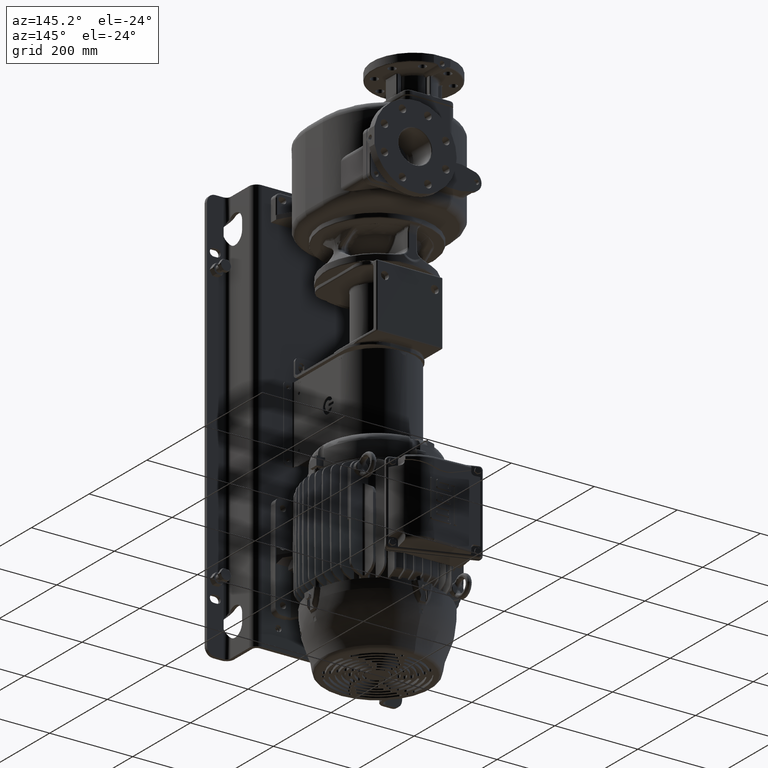
[diagram: clean part render]
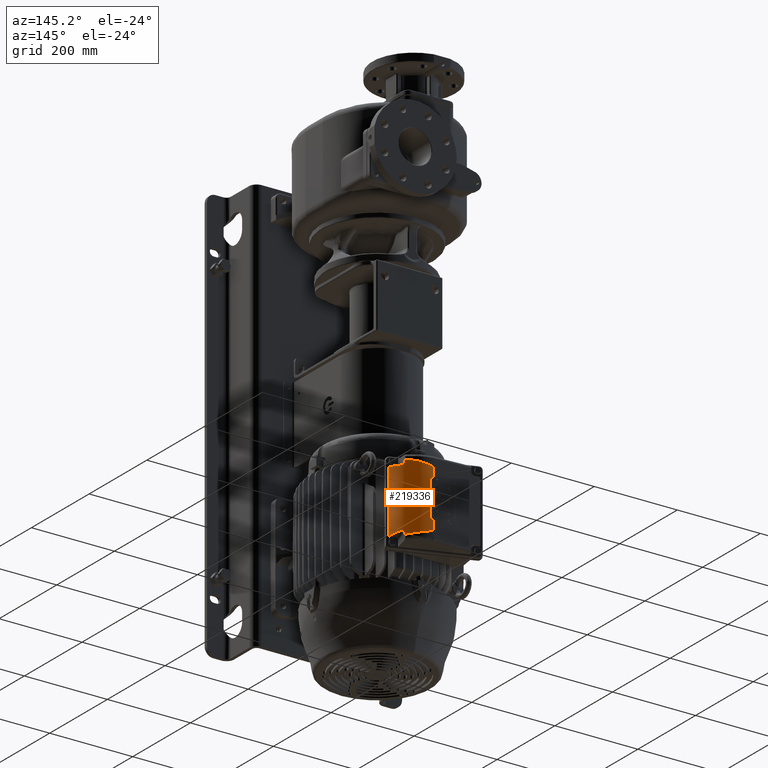
[diagram: same view with one face highlighted and labeled with its STEP entity id]
A machine part, auxiliary view. The second image highlights one B-rep face of the part: STEP entity #219336.
In plain terms, the highlighted cylindrical surface (edge-blend (fillet) strip) has radius 65 mm, axis along (0, 0, -1).
Its self-contained STEP definition (entity closure, byte-faithful):
#89718=CARTESIAN_POINT('',(4.771294631195E1,4.182092098260E2,
-8.160003177154E2));
#89719=CARTESIAN_POINT('',(4.646697699610E1,4.182925476321E2,
-8.159667786180E2));
#89720=CARTESIAN_POINT('',(4.521941759390E1,4.183399555284E2,-8.1595E2));
#89721=CARTESIAN_POINT('',(4.397026638450E1,4.183513946304E2,-8.1595E2));
#89727=DIRECTION('',(0.E0,0.E0,-1.E0));
#89728=VECTOR('',#89727,8.182486131111E1);
#89729=CARTESIAN_POINT('',(4.446933435476E1,4.183449080974E2,
-7.260366757881E2));
#89730=LINE('',#89729,#89728);
#89731=DIRECTION('',(0.E0,0.E0,1.E0));
#89732=VECTOR('',#89731,8.653436815393E1);
#89733=CARTESIAN_POINT('',(5.167995140178E1,4.178213881604E2,
-8.123577223964E2));
#89734=LINE('',#89733,#89732);
#89735=DIRECTION('',(2.019906635933E-14,0.E0,1.E0));
#89736=VECTOR('',#89735,2.321682583042E1);
#89737=CARTESIAN_POINT('',(4.397026638450E1,4.183513946304E2,
-8.391668258304E2));
#89738=LINE('',#89737,#89736);
#89739=DIRECTION('',(0.E0,2.082971834818E-14,-1.E0));
#89740=VECTOR('',#89739,2.728957632102E0);
#89741=CARTESIAN_POINT('',(9.540577810269E1,3.923131205767E2,
-8.481679453349E2));
#89742=LINE('',#89741,#89740);
#89743=CARTESIAN_POINT('',(1.083515095551E2,3.551034637032E2,-8.45675E2));
#89744=CARTESIAN_POINT('',(1.082871176806E2,3.574951924072E2,
-8.452825600711E2));
#89745=CARTESIAN_POINT('',(1.078965939868E2,3.622169654542E2,
-8.445236780234E2));
#89746=CARTESIAN_POINT('',(1.065633760421E2,3.691234773207E2,
-8.434595950746E2));
#89747=CARTESIAN_POINT('',(1.044924227249E2,3.758561267866E2,
-8.424687890729E2));
#89748=CARTESIAN_POINT('',(1.026092383523E2,3.802261238736E2,
-8.418581683417E2));
#89749=CARTESIAN_POINT('',(1.015344383104E2,3.823797292666E2,
-8.415660890957E2));
#89751=DIRECTION('',(0.E0,0.E0,-1.E0));
#89752=VECTOR('',#89751,1.5045E2);
#89753=CARTESIAN_POINT('',(1.083515095551E2,3.551034637032E2,-6.95225E2));
#89754=LINE('',#89753,#89752);
#89755=CARTESIAN_POINT('',(1.015344383104E2,3.823797292666E2,
-6.993339109043E2));
#89756=CARTESIAN_POINT('',(1.026092383523E2,3.802261238736E2,
-6.990418316583E2));
#89757=CARTESIAN_POINT('',(1.044924227249E2,3.758561267866E2,
-6.984312109271E2));
#89758=CARTESIAN_POINT('',(1.065633760421E2,3.691234773207E2,
-6.974404049254E2));
#89759=CARTESIAN_POINT('',(1.078965939868E2,3.622169654542E2,
-6.963763219766E2));
#89760=CARTESIAN_POINT('',(1.082871176806E2,3.574951924072E2,
-6.956174399289E2));
#89761=CARTESIAN_POINT('',(1.083515095551E2,3.551034637032E2,-6.95225E2));
#89763=DIRECTION('',(0.E0,0.E0,-1.E0));
#89764=VECTOR('',#89763,2.728957632102E0);
#89765=CARTESIAN_POINT('',(9.540577810269E1,3.923131205767E2,
-6.900030970330E2));
#89766=LINE('',#89765,#89764);
#89767=DIRECTION('',(-1.460114943669E-14,0.E0,1.E0));
#89768=VECTOR('',#89767,1.070596548203E2);
#89769=CARTESIAN_POINT('',(4.397026638450E1,4.183513946304E2,
-8.087928289899E2));
#89770=LINE('',#89769,#89768);
#89783=CARTESIAN_POINT('',(4.397026638450E1,4.183513946304E2,
-8.087928289899E2));
#89784=CARTESIAN_POINT('',(4.398621734625E1,4.183512485595E2,
-8.087831982505E2));
#89785=CARTESIAN_POINT('',(4.401747901137E1,4.183509505303E2,
-8.087631308728E2));
#89786=CARTESIAN_POINT('',(4.406234584593E1,4.183504911136E2,
-8.087307210676E2));
#89787=CARTESIAN_POINT('',(4.410518360313E1,4.183500235670E2,
-8.086960410248E2));
#89788=CARTESIAN_POINT('',(4.414595745549E1,4.183495523087E2,
-8.086591389081E2));
#89789=CARTESIAN_POINT('',(4.418463536582E1,4.183490816249E2,
-8.086200519821E2));
#89790=CARTESIAN_POINT('',(4.422117736796E1,4.183486157766E2,
-8.085788134857E2));
#89791=CARTESIAN_POINT('',(4.425553653304E1,4.183481590028E2,
-8.085354532145E2));
#89792=CARTESIAN_POINT('',(4.428765825810E1,4.183477155329E2,
-8.084899988375E2));
#89793=CARTESIAN_POINT('',(4.431748060679E1,4.183472895835E2,
-8.084424762516E2));
#89794=CARTESIAN_POINT('',(4.434493359472E1,4.183468853658E2,
-8.083929111861E2));
#89795=CARTESIAN_POINT('',(4.436993802866E1,4.183465070969E2,
-8.083413328881E2));
#89796=CARTESIAN_POINT('',(4.439240711880E1,4.183461589641E2,
-8.082877731798E2));
#89797=CARTESIAN_POINT('',(4.441224582342E1,4.183458451173E2,
-8.082322698302E2));
#89798=CARTESIAN_POINT('',(4.442935153014E1,4.183455696339E2,
-8.081748685790E2));
#89799=CARTESIAN_POINT('',(4.444361503414E1,4.183453364721E2,
-8.081156248535E2));
#89800=CARTESIAN_POINT('',(4.445492181873E1,4.183451494113E2,
-8.080546054170E2));
#89801=CARTESIAN_POINT('',(4.446315344306E1,4.183450119835E2,
-8.079918887967E2));
#89802=CARTESIAN_POINT('',(4.446818890617E1,4.183449273986E2,
-8.079275720689E2));
#89803=CARTESIAN_POINT('',(4.446933435476E1,4.183449080974E2,
-8.078836980384E2));
#89804=CARTESIAN_POINT('',(4.446933435476E1,4.183449080974E2,
-8.078615370992E2));
#89810=CARTESIAN_POINT('',(4.397026638450E1,4.183513946304E2,
-8.087928289899E2));
#89966=CARTESIAN_POINT('',(4.446933435476E1,4.183449080974E2,
-7.260366757881E2));
#89967=CARTESIAN_POINT('',(4.446933435476E1,4.183449080974E2,
-7.260145105489E2));
#89968=CARTESIAN_POINT('',(4.447048030892E1,4.183448888172E2,
-7.259706249630E2));
#89969=CARTESIAN_POINT('',(4.447551856265E1,4.183448037860E2,
-7.259062858888E2));
#89970=CARTESIAN_POINT('',(4.448375663144E1,4.183446639042E2,
-7.258435309807E2));
#89971=CARTESIAN_POINT('',(4.449507614162E1,4.183444699893E2,
-7.257824510182E2));
#89972=CARTESIAN_POINT('',(4.450936213876E1,4.183442224320E2,
-7.257231179971E2));
#89973=CARTESIAN_POINT('',(4.452650445962E1,4.183439212227E2,
-7.256655929238E2));
#89974=CARTESIAN_POINT('',(4.454639920102E1,4.183435659695E2,
-7.256099257872E2));
#89975=CARTESIAN_POINT('',(4.456894976802E1,4.183431559149E2,
-7.255561581159E2));
#89976=CARTESIAN_POINT('',(4.459406702883E1,4.183426899627E2,
-7.255043260103E2));
#89977=CARTESIAN_POINT('',(4.462166975552E1,4.183421666914E2,
-7.254544615860E2));
#89978=CARTESIAN_POINT('',(4.465168354709E1,4.183415843927E2,
-7.254065963601E2));
#89979=CARTESIAN_POINT('',(4.468404208633E1,4.183409410587E2,
-7.253607600787E2));
#89980=CARTESIAN_POINT('',(4.471868622929E1,4.183402344072E2,
-7.253169834575E2));
#89981=CARTESIAN_POINT('',(4.475556356094E1,4.183394618934E2,
-7.252752993392E2));
#89982=CARTESIAN_POINT('',(4.479462791612E1,4.183386207213E2,
-7.252357437433E2));
#89983=CARTESIAN_POINT('',(4.483583869575E1,4.183377078561E2,
-7.251983570008E2));
#89984=CARTESIAN_POINT('',(4.487915800659E1,4.183367200874E2,
-7.251631862845E2));
#89985=CARTESIAN_POINT('',(4.492455003789E1,4.183356540482E2,
-7.251302853645E2));
#89986=CARTESIAN_POINT('',(4.497198035663E1,4.183345062362E2,
-7.250997146489E2));
#89987=CARTESIAN_POINT('',(4.502141467529E1,4.183332730511E2,
-7.250715415839E2));
#89988=CARTESIAN_POINT('',(4.507281601728E1,4.183319508784E2,
-7.250458415499E2));
#89989=CARTESIAN_POINT('',(4.512614440136E1,4.183305361196E2,
-7.250226970164E2));
#89990=CARTESIAN_POINT('',(4.518135405371E1,4.183290252932E2,
-7.250021978336E2));
#89991=CARTESIAN_POINT('',(4.523839245672E1,4.183274150994E2,
-7.249844403102E2));
#89992=CARTESIAN_POINT('',(4.529719798670E1,4.183257025327E2,
-7.249695267082E2));
#89993=CARTESIAN_POINT('',(4.535769785110E1,4.183238850030E2,
-7.249575641029E2));
#89994=CARTESIAN_POINT('',(4.541980792775E1,4.183219604083E2,
-7.249486628794E2));
#89995=CARTESIAN_POINT('',(4.548342697240E1,4.183199274017E2,
-7.249429354134E2));
#89996=CARTESIAN_POINT('',(4.552677260950E1,4.183184992631E2,
-7.249413076148E2));
#89997=CARTESIAN_POINT('',(4.554865364849E1,4.183177671518E2,
-7.249410596728E2));
#90017=CARTESIAN_POINT('',(4.554865364849E1,4.183177671518E2,
-7.249410596728E2));
#90018=CARTESIAN_POINT('',(4.721607607772E1,4.182619773491E2,
-7.249221655006E2));
#90019=CARTESIAN_POINT('',(4.887801531294E1,4.181421976353E2,
-7.248734101805E2));
#90020=CARTESIAN_POINT('',(5.053448851004E1,4.179586282230E2,
-7.247948871424E2));
#90026=CARTESIAN_POINT('',(5.053448851004E1,4.179586282230E2,
-7.247948871424E2));
#90027=CARTESIAN_POINT('',(5.055842738466E1,4.179559753307E2,
-7.247937523500E2));
#90028=CARTESIAN_POINT('',(5.060574291437E1,4.179507048978E2,
-7.247927165302E2));
#90029=CARTESIAN_POINT('',(5.067488024924E1,4.179429277806E2,-7.24794713E2));
#90030=CARTESIAN_POINT('',(5.074203754311E1,4.179353015856E2,
-7.248001026264E2));
#90031=CARTESIAN_POINT('',(5.080710183519E1,4.179278455602E2,
-7.248087246535E2));
#90032=CARTESIAN_POINT('',(5.086998556808E1,4.179205762651E2,
-7.248204188307E2));
#90033=CARTESIAN_POINT('',(5.093062318654E1,4.179135078168E2,
-7.248350282211E2));
#90034=CARTESIAN_POINT('',(5.098896949945E1,4.179066519487E2,
-7.248524021078E2));
#90035=CARTESIAN_POINT('',(5.104499581815E1,4.179000183568E2,
-7.248723979934E2));
#90036=CARTESIAN_POINT('',(5.109868649559E1,4.178936150282E2,
-7.248948829403E2));
#90037=CARTESIAN_POINT('',(5.115003696211E1,4.178874484146E2,
-7.249197350373E2));
#90038=CARTESIAN_POINT('',(5.119904991493E1,4.178815238450E2,
-7.249468437358E2));
#90039=CARTESIAN_POINT('',(5.124573296050E1,4.178758457869E2,
-7.249761099584E2));
#90040=CARTESIAN_POINT('',(5.129010002259E1,4.178704176537E2,
-7.250074492512E2));
#90041=CARTESIAN_POINT('',(5.133216059663E1,4.178652431177E2,
-7.250407851616E2));
#90042=CARTESIAN_POINT('',(5.137193712615E1,4.178603239657E2,
-7.250760658640E2));
#90043=CARTESIAN_POINT('',(5.140941968870E1,4.178556657154E2,
-7.251132248675E2));
#90044=CARTESIAN_POINT('',(5.144463515225E1,4.178512690739E2,
-7.251522429748E2));
#90045=CARTESIAN_POINT('',(5.147764771112E1,4.178471297333E2,
-7.251931839278E2));
#90046=CARTESIAN_POINT('',(5.150841391329E1,4.178432565907E2,
-7.252360213783E2));
#90047=CARTESIAN_POINT('',(5.153684918355E1,4.178396636144E2,
-7.252806693115E2));
#90048=CARTESIAN_POINT('',(5.156286363685E1,4.178363653555E2,
-7.253270083652E2));
#90049=CARTESIAN_POINT('',(5.158642940496E1,4.178333683505E2,
-7.253750083322E2));
#90050=CARTESIAN_POINT('',(5.160756764648E1,4.178306726209E2,
-7.254247958751E2));
#90051=CARTESIAN_POINT('',(5.162621056398E1,4.178282892627E2,
-7.254763740861E2));
#90052=CARTESIAN_POINT('',(5.164227796197E1,4.178262307630E2,
-7.255297325328E2));
#90053=CARTESIAN_POINT('',(5.165568402560E1,4.178245101029E2,
-7.255848798973E2));
#90054=CARTESIAN_POINT('',(5.166632650648E1,4.178231421231E2,
-7.256418059162E2));
#90055=CARTESIAN_POINT('',(5.167409324490E1,4.178221426580E2,
-7.257005007199E2));
#90056=CARTESIAN_POINT('',(5.167886080927E1,4.178215286679E2,
-7.257609324337E2));
#90057=CARTESIAN_POINT('',(5.167995140178E1,4.178213881604E2,
-7.258023720116E2));
#90058=CARTESIAN_POINT('',(5.167995140178E1,4.178213881604E2,
-7.258233542425E2));
#90082=CARTESIAN_POINT('',(5.167995140178E1,4.178213881604E2,
-8.123577223964E2));
#90083=CARTESIAN_POINT('',(5.167995140178E1,4.178213881604E2,
-8.124109449855E2));
#90084=CARTESIAN_POINT('',(5.167794660362E1,4.178216464718E2,
-8.125164111141E2));
#90085=CARTESIAN_POINT('',(5.166911978489E1,4.178227829463E2,
-8.126714131130E2));
#90086=CARTESIAN_POINT('',(5.165464449070E1,4.178246440042E2,
-8.128233640135E2));
#90087=CARTESIAN_POINT('',(5.163466162215E1,4.178272077162E2,
-8.129723334013E2));
#90088=CARTESIAN_POINT('',(5.160931695637E1,4.178304502465E2,
-8.131182454382E2));
#90089=CARTESIAN_POINT('',(5.157875967731E1,4.178343461806E2,
-8.132610147527E2));
#90090=CARTESIAN_POINT('',(5.154313142802E1,4.178388700281E2,
-8.134005783430E2));
#90091=CARTESIAN_POINT('',(5.150263581723E1,4.178439875771E2,
-8.135366852811E2));
#90092=CARTESIAN_POINT('',(5.145739009243E1,4.178496748439E2,
-8.136694272192E2));
#90093=CARTESIAN_POINT('',(5.140742528398E1,4.178559178123E2,
-8.137990266948E2));
#90094=CARTESIAN_POINT('',(5.135283545501E1,4.178626937066E2,
-8.139254548859E2));
#90095=CARTESIAN_POINT('',(5.129369586841E1,4.178699813850E2,
-8.140487146465E2));
#90096=CARTESIAN_POINT('',(5.123006341674E1,4.178777612356E2,
-8.141688166585E2));
#90097=CARTESIAN_POINT('',(5.116199070039E1,4.178860134416E2,
-8.142857540600E2));
#90098=CARTESIAN_POINT('',(5.108951733868E1,4.178947190376E2,
-8.143995203899E2));
#90099=CARTESIAN_POINT('',(5.101267467280E1,4.179038593103E2,
-8.145101006780E2));
#90100=CARTESIAN_POINT('',(5.093148443231E1,4.179134159311E2,
-8.146174741316E2));
#90101=CARTESIAN_POINT('',(5.084596293211E1,4.179233704294E2,
-8.147216089304E2));
#90102=CARTESIAN_POINT('',(5.075611699283E1,4.179337046368E2,
-8.148224680065E2));
#90103=CARTESIAN_POINT('',(5.066194948290E1,4.179444000027E2,
-8.149200024997E2));
#90104=CARTESIAN_POINT('',(5.056345915730E1,4.179554375897E2,
-8.150141532814E2));
#90105=CARTESIAN_POINT('',(5.046064146863E1,4.179667979547E2,
-8.151048508249E2));
#90106=CARTESIAN_POINT('',(5.035349037008E1,4.179784609261E2,
-8.151920143448E2));
#90107=CARTESIAN_POINT('',(5.024200083037E1,4.179904053231E2,
-8.152755508497E2));
#90108=CARTESIAN_POINT('',(5.012616917024E1,4.180026089259E2,
-8.153553560474E2));
#90109=CARTESIAN_POINT('',(5.000599803282E1,4.180150479788E2,
-8.154313123287E2));
#90110=CARTESIAN_POINT('',(4.988149197614E1,4.180276976949E2,
-8.155032930734E2));
#90111=CARTESIAN_POINT('',(4.975266296406E1,4.180405317333E2,
-8.155711601391E2));
#90112=CARTESIAN_POINT('',(4.961953142031E1,4.180535221822E2,
-8.156347649300E2));
#90113=CARTESIAN_POINT('',(4.948212781889E1,4.180666395069E2,
-8.156939490618E2));
#90114=CARTESIAN_POINT('',(4.934049568599E1,4.180798523989E2,
-8.157485447054E2));
#90115=CARTESIAN_POINT('',(4.919469275284E1,4.180931278428E2,
-8.157983760308E2));
#90116=CARTESIAN_POINT('',(4.904479244704E1,4.181064311782E2,
-8.158432604896E2));
#90117=CARTESIAN_POINT('',(4.889088762061E1,4.181197260095E2,
-8.158830097603E2));
#90118=CARTESIAN_POINT('',(4.873308902874E1,4.181329746175E2,
-8.159174323736E2));
#90119=CARTESIAN_POINT('',(4.857152720513E1,4.181461380876E2,
-8.159463351643E2));
#90120=CARTESIAN_POINT('',(4.840635343771E1,4.181591765546E2,
-8.159695251621E2));
#90121=CARTESIAN_POINT('',(4.823774194338E1,4.181720493798E2,
-8.159868113887E2));
#90122=CARTESIAN_POINT('',(4.806589006313E1,4.181847155410E2,
-8.159980074362E2));
#90123=CARTESIAN_POINT('',(4.789101350124E1,4.181971343170E2,
-8.160029331481E2));
#90124=CARTESIAN_POINT('',(4.777258838335E1,4.182052206111E2,
-8.160019231652E2));
#90125=CARTESIAN_POINT('',(4.771294631195E1,4.182092098260E2,
-8.160003177154E2));
#90139=CARTESIAN_POINT('',(4.397026638449E1,4.183513946304E2,
-8.391668258304E2));
#90140=CARTESIAN_POINT('',(4.658834994006E1,4.183274195305E2,
-8.400009155113E2));
#90141=CARTESIAN_POINT('',(5.168432488325E1,4.179662967923E2,
-8.415671583128E2));
#90142=CARTESIAN_POINT('',(5.895880086210E1,4.165992241719E2,
-8.436478614558E2));
#90143=CARTESIAN_POINT('',(6.589255806569E1,4.144710265522E2,
-8.454808210875E2));
#90144=CARTESIAN_POINT('',(7.249938856358E1,4.116125137672E2,
-8.470760657004E2));
#90145=CARTESIAN_POINT('',(7.878063356493E1,4.080266819179E2,
-8.484345705149E2));
#90146=CARTESIAN_POINT('',(8.472552184032E1,4.036894693657E2,
-8.495485035523E2));
#90147=CARTESIAN_POINT('',(9.030894487030E1,3.985447866809E2,
-8.503996079004E2));
#90148=CARTESIAN_POINT('',(9.376055717893E1,3.945103544570E2,
-8.507702013786E2));
#90149=CARTESIAN_POINT('',(9.540577810269E1,3.923131205767E2,
-8.508969029670E2));
#90449=CARTESIAN_POINT('',(9.540577810269E1,3.923131205767E2,
-8.481679453349E2));
#90450=CARTESIAN_POINT('',(9.540577810269E1,3.923131205767E2,
-8.480978986927E2));
#90451=CARTESIAN_POINT('',(9.540724616814E1,3.923111600529E2,
-8.479584205816E2));
#90452=CARTESIAN_POINT('',(9.541379285833E1,3.923024152385E2,
-8.477511340914E2));
#90453=CARTESIAN_POINT('',(9.542461110100E1,3.922879579139E2,
-8.475460579961E2));
#90454=CARTESIAN_POINT('',(9.543962759515E1,3.922678762064E2,
-8.473432544066E2));
#90455=CARTESIAN_POINT('',(9.545879019541E1,3.922422263727E2,
-8.471426174534E2));
#90456=CARTESIAN_POINT('',(9.548205448783E1,3.922110507975E2,
-8.469441154628E2));
#90457=CARTESIAN_POINT('',(9.550937859980E1,3.921743850392E2,
-8.467477498195E2));
#90458=CARTESIAN_POINT('',(9.554077424829E1,3.921321892168E2,
-8.465532534349E2));
#90459=CARTESIAN_POINT('',(9.557626149107E1,3.920844083093E2,
-8.463604958804E2));
#90460=CARTESIAN_POINT('',(9.561581202444E1,3.920310485373E2,
-8.461696593178E2));
#90461=CARTESIAN_POINT('',(9.565937537422E1,3.919721426457E2,
-8.459809710189E2));
#90462=CARTESIAN_POINT('',(9.570695108682E1,3.919076522694E2,
-8.457944233198E2));
#90463=CARTESIAN_POINT('',(9.575854375164E1,3.918375282082E2,
-8.456100308213E2));
#90464=CARTESIAN_POINT('',(9.581415887478E1,3.917617159200E2,
-8.454278299087E2));
#90465=CARTESIAN_POINT('',(9.587381184478E1,3.916801430852E2,
-8.452478485298E2));
#90466=CARTESIAN_POINT('',(9.593752273647E1,3.915927263706E2,
-8.450701254311E2));
#90467=CARTESIAN_POINT('',(9.600531758878E1,3.914993693718E2,
-8.448947052900E2));
#90468=CARTESIAN_POINT('',(9.607722811707E1,3.913999626273E2,
-8.447216402130E2));
#90469=CARTESIAN_POINT('',(9.615328996024E1,3.912943856447E2,
-8.445509936230E2));
#90470=CARTESIAN_POINT('',(9.623354543338E1,3.911825026365E2,
-8.443828339930E2));
#90471=CARTESIAN_POINT('',(9.631804086395E1,3.910641657029E2,
-8.442172414149E2));
#90472=CARTESIAN_POINT('',(9.640682685326E1,3.909392139411E2,
-8.440543067042E2));
#90473=CARTESIAN_POINT('',(9.649995777528E1,3.908074735625E2,
-8.438941324154E2));
#90474=CARTESIAN_POINT('',(9.659749186140E1,3.906687571377E2,
-8.437368327467E2));
#90475=CARTESIAN_POINT('',(9.669949077620E1,3.905228634956E2,
-8.435825345164E2));
#90476=CARTESIAN_POINT('',(9.680601833741E1,3.903695788111E2,
-8.434313791850E2));
#90477=CARTESIAN_POINT('',(9.691713989552E1,3.902086767224E2,
-8.432835235843E2));
#90478=CARTESIAN_POINT('',(9.703292097645E1,3.900399194953E2,
-8.431391413969E2));
#90479=CARTESIAN_POINT('',(9.715342921072E1,3.898630543380E2,
-8.429984206510E2));
#90480=CARTESIAN_POINT('',(9.727873149044E1,3.896778165857E2,
-8.428615674173E2));
#90481=CARTESIAN_POINT('',(9.740889335418E1,3.894839296591E2,
-8.427288061403E2));
#90482=CARTESIAN_POINT('',(9.754397848877E1,3.892811047838E2,
-8.426003800005E2));
#90483=CARTESIAN_POINT('',(9.768404730571E1,3.890690420587E2,
-8.424765521125E2));
#90484=CARTESIAN_POINT('',(9.782915600341E1,3.888474307869E2,
-8.423576060698E2));
#90485=CARTESIAN_POINT('',(9.797935516377E1,3.886159504977E2,
-8.422438467936E2));
#90486=CARTESIAN_POINT('',(9.813468811554E1,3.883742723469E2,
-8.421356013406E2));
#90487=CARTESIAN_POINT('',(9.829518922798E1,3.881220606872E2,
-8.420332194504E2));
#90488=CARTESIAN_POINT('',(9.846088439649E1,3.878589711887E2,
-8.419370727066E2));
#90489=CARTESIAN_POINT('',(9.863178775219E1,3.875846549044E2,
-8.418475560793E2));
#90490=CARTESIAN_POINT('',(9.880790031054E1,3.872987594326E2,
-8.417650877991E2));
#90491=CARTESIAN_POINT('',(9.898920832406E1,3.870009306398E2,
-8.416901092918E2));
#90492=CARTESIAN_POINT('',(9.917568099536E1,3.866908155265E2,
-8.416230852679E2));
#90493=CARTESIAN_POINT('',(9.936726781932E1,3.863680661707E2,
-8.415645030812E2));
#90494=CARTESIAN_POINT('',(9.956390053287E1,3.860323354067E2,
-8.415148720545E2));
#90495=CARTESIAN_POINT('',(9.976546491923E1,3.856833266024E2,
-8.414747251051E2));
#90496=CARTESIAN_POINT('',(9.997190194408E1,3.853206154022E2,
-8.414446037335E2));
#90497=CARTESIAN_POINT('',(1.001829052025E2,3.849441836275E2,
-8.414250963506E2));
#90498=CARTESIAN_POINT('',(1.003981871999E2,3.845539694076E2,
-8.414167654511E2));
#90499=CARTESIAN_POINT('',(1.006177030508E2,3.841494446896E2,
-8.414201746449E2));
#90500=CARTESIAN_POINT('',(1.008414011831E2,3.837300419255E2,
-8.414359425211E2));
#90501=CARTESIAN_POINT('',(1.010689645971E2,3.832956507130E2,
-8.414647022681E2));
#90502=CARTESIAN_POINT('',(1.012999801887E2,3.828463302843E2,
-8.415070662002E2));
#90503=CARTESIAN_POINT('',(1.014560025780E2,3.825368930271E2,
-8.415447740151E2));
#90504=CARTESIAN_POINT('',(1.015344383104E2,3.823797292666E2,
-8.415660890957E2));
#90536=CARTESIAN_POINT('',(1.015344383104E2,3.823797292666E2,
-6.993339109043E2));
#90537=CARTESIAN_POINT('',(1.014560066324E2,3.825368849031E2,
-6.993552248831E2));
#90538=CARTESIAN_POINT('',(1.012999917381E2,3.828463072333E2,
-6.993929307815E2));
#90539=CARTESIAN_POINT('',(1.010690125099E2,3.832955581174E2,
-6.994352898638E2));
#90540=CARTESIAN_POINT('',(1.008414309741E2,3.837299863678E2,
-6.994640558326E2));
#90541=CARTESIAN_POINT('',(1.006175882511E2,3.841496606068E2,
-6.994798346502E2));
#90542=CARTESIAN_POINT('',(1.003977715017E2,3.845547323250E2,
-6.994832355641E2));
#90543=CARTESIAN_POINT('',(1.001822333266E2,3.849453931975E2,
-6.994748624422E2));
#90544=CARTESIAN_POINT('',(9.997118853523E1,3.853218779710E2,
-6.994553105425E2));
#90545=CARTESIAN_POINT('',(9.976481825958E1,3.856844540481E2,
-6.994251626066E2));
#90546=CARTESIAN_POINT('',(9.956327179101E1,3.860334162911E2,
-6.993849858362E2));
#90547=CARTESIAN_POINT('',(9.936667189524E1,3.863690765314E2,
-6.993353301545E2));
#90548=CARTESIAN_POINT('',(9.917511408578E1,3.866917641976E2,
-6.992767258864E2));
#90549=CARTESIAN_POINT('',(9.898866995764E1,3.870018202500E2,
-6.992096823281E2));
#90550=CARTESIAN_POINT('',(9.880739000582E1,3.872995925596E2,
-6.991346869241E2));
#90551=CARTESIAN_POINT('',(9.863130476919E1,3.875854343599E2,
-6.990522040813E2));
#90552=CARTESIAN_POINT('',(9.846042822914E1,3.878596992602E2,
-6.989626752228E2));
#90553=CARTESIAN_POINT('',(9.829475928013E1,3.881227396738E2,
-6.988665184370E2));
#90554=CARTESIAN_POINT('',(9.813428349689E1,3.883749048817E2,
-6.987641284005E2));
#90555=CARTESIAN_POINT('',(9.797897500885E1,3.886165390448E2,
-6.986558765713E2));
#90556=CARTESIAN_POINT('',(9.782879949376E1,3.888479776221E2,
-6.985421126012E2));
#90557=CARTESIAN_POINT('',(9.768371357216E1,3.890695494300E2,
-6.984231633949E2));
#90558=CARTESIAN_POINT('',(9.754366657953E1,3.892815749637E2,
-6.982993336772E2));
#90559=CARTESIAN_POINT('',(9.740860247384E1,3.894843645930E2,
-6.981709070689E2));
#90560=CARTESIAN_POINT('',(9.727846071256E1,3.896782183325E2,
-6.980381464524E2));
#90561=CARTESIAN_POINT('',(9.715317773297E1,3.898634246956E2,
-6.979012950306E2));
#90562=CARTESIAN_POINT('',(9.703268779558E1,3.900402604873E2,
-6.977605769161E2));
#90563=CARTESIAN_POINT('',(9.691692418690E1,3.902089900430E2,
-6.976161982635E2));
#90564=CARTESIAN_POINT('',(9.680581943127E1,3.903698658736E2,
-6.974683472222E2));
#90565=CARTESIAN_POINT('',(9.669930794440E1,3.905231257485E2,
-6.973171973414E2));
#90566=CARTESIAN_POINT('',(9.659732420954E1,3.906689962193E2,
-6.971629051213E2));
#90567=CARTESIAN_POINT('',(9.649980451518E1,3.908076909128E2,
-6.970056120721E2));
#90568=CARTESIAN_POINT('',(9.640668738988E1,3.909394106863E2,
-6.968454452588E2));
#90569=CARTESIAN_POINT('',(9.631791472288E1,3.910643427675E2,
-6.966825190943E2));
#90570=CARTESIAN_POINT('',(9.623343179749E1,3.911826613955E2,
-6.965169354707E2));
#90571=CARTESIAN_POINT('',(9.615318792067E1,3.912945275673E2,
-6.963487848871E2));
#90572=CARTESIAN_POINT('',(9.607713680695E1,3.914000890923E2,
-6.961781473650E2));
#90573=CARTESIAN_POINT('',(9.600523636746E1,3.914994814175E2,
-6.960050917685E2));
#90574=CARTESIAN_POINT('',(9.593745110298E1,3.915928248215E2,
-6.958296818510E2));
#90575=CARTESIAN_POINT('',(9.587374921845E1,3.916802288564E2,
-6.956519694967E2));
#90576=CARTESIAN_POINT('',(9.581410470808E1,3.917617898640E2,
-6.954719995288E2));
#90577=CARTESIAN_POINT('',(9.575849716280E1,3.918375916140E2,
-6.952898094133E2));
#90578=CARTESIAN_POINT('',(9.570691267989E1,3.919077043931E2,
-6.951054324808E2));
#90579=CARTESIAN_POINT('',(9.565934293422E1,3.919721865606E2,
-6.949188952587E2));
#90580=CARTESIAN_POINT('',(9.561578614109E1,3.920310834851E2,
-6.947302208010E2));
#90581=CARTESIAN_POINT('',(9.557624690808E1,3.920844279662E2,
-6.945394298597E2));
#90582=CARTESIAN_POINT('',(9.554073297404E1,3.921322447839E2,
-6.943465219597E2));
#90583=CARTESIAN_POINT('',(9.550927517283E1,3.921745239737E2,
-6.941515835001E2));
#90584=CARTESIAN_POINT('',(9.548193180419E1,3.922112153049E2,
-6.939549297385E2));
#90585=CARTESIAN_POINT('',(9.545870656981E1,3.922423383491E2,
-6.937565759940E2));
#90586=CARTESIAN_POINT('',(9.543958655601E1,3.922679311011E2,
-6.935562375628E2));
#90587=CARTESIAN_POINT('',(9.542459480477E1,3.922879796946E2,
-6.933536625404E2));
#90588=CARTESIAN_POINT('',(9.541378956867E1,3.923024196323E2,
-6.931487623913E2));
#90589=CARTESIAN_POINT('',(9.540724678782E1,3.923111592252E2,
-6.929415881273E2));
#90590=CARTESIAN_POINT('',(9.540577810269E1,3.923131205767E2,
-6.928021144240E2));
#90591=CARTESIAN_POINT('',(9.540577810269E1,3.923131205767E2,
-6.927320546651E2));
#90607=CARTESIAN_POINT('',(9.540577810269E1,3.923131205767E2,
-6.900030970330E2));
#90608=CARTESIAN_POINT('',(9.376055717893E1,3.945103544570E2,
-6.901297986214E2));
#90609=CARTESIAN_POINT('',(9.030894487030E1,3.985447866809E2,
-6.905003920996E2));
#90610=CARTESIAN_POINT('',(8.472552184032E1,4.036894693657E2,
-6.913514964477E2));
#90611=CARTESIAN_POINT('',(7.878063356493E1,4.080266819179E2,
-6.924654294851E2));
#90612=CARTESIAN_POINT('',(7.249938856358E1,4.116125137672E2,
-6.938239342996E2));
#90613=CARTESIAN_POINT('',(6.589255806569E1,4.144710265522E2,
-6.954191789125E2));
#90614=CARTESIAN_POINT('',(5.895880086211E1,4.165992241719E2,
-6.972521385442E2));
#90615=CARTESIAN_POINT('',(5.168432488326E1,4.179662967923E2,
-6.993328416872E2));
#90616=CARTESIAN_POINT('',(4.658834994007E1,4.183274195305E2,
-7.008990844887E2));
#90617=CARTESIAN_POINT('',(4.397026638450E1,4.183513946304E2,
-7.017331741696E2));
#108455=VERTEX_POINT('',#90607);
#108456=VERTEX_POINT('',#90617);
#108478=CARTESIAN_POINT('',(4.397026638450E1,4.183513946304E2,
-8.391668258304E2));
#108480=VERTEX_POINT('',#108478);
#108561=CARTESIAN_POINT('',(4.446933435476E1,4.183449080974E2,
-7.260366757881E2));
#108563=VERTEX_POINT('',#108561);
#108601=CARTESIAN_POINT('',(1.083515095551E2,3.551034637032E2,-8.45675E2));
#108603=VERTEX_POINT('',#108601);
#108605=VERTEX_POINT('',#90536);
#108606=VERTEX_POINT('',#90591);
#108607=CARTESIAN_POINT('',(4.397026638450E1,4.183513946304E2,-8.1595E2));
#108609=VERTEX_POINT('',#108607);
#108611=CARTESIAN_POINT('',(1.083515095551E2,3.551034637032E2,-6.95225E2));
#108612=VERTEX_POINT('',#108611);
#108664=VERTEX_POINT('',#89810);
#108681=CARTESIAN_POINT('',(9.540577810269E1,3.923131205767E2,
-8.481679453349E2));
#108683=VERTEX_POINT('',#108681);
#108689=CARTESIAN_POINT('',(5.053448851004E1,4.179586282230E2,
-7.247948871424E2));
#108690=VERTEX_POINT('',#108689);
#108722=CARTESIAN_POINT('',(1.015344383104E2,3.823797292666E2,
-8.415660890957E2));
#108723=VERTEX_POINT('',#108722);
#108862=CARTESIAN_POINT('',(4.554865364849E1,4.183177671518E2,
-7.249410596728E2));
#108863=VERTEX_POINT('',#108862);
#108908=CARTESIAN_POINT('',(4.771294631195E1,4.182092098260E2,
-8.160003177154E2));
#108909=VERTEX_POINT('',#108908);
#108932=CARTESIAN_POINT('',(4.446933435476E1,4.183449080974E2,
-8.078615370992E2));
#108933=VERTEX_POINT('',#108932);
#108934=CARTESIAN_POINT('',(5.167995140178E1,4.178213881604E2,
-7.258233542425E2));
#108935=VERTEX_POINT('',#108934);
#108943=CARTESIAN_POINT('',(9.540577810269E1,3.923131205767E2,
-8.508969029670E2));
#108944=VERTEX_POINT('',#108943);
#108976=CARTESIAN_POINT('',(5.167995140178E1,4.178213881604E2,
-8.123577223964E2));
#108977=VERTEX_POINT('',#108976);
#219296=CARTESIAN_POINT('',(4.337505384792E1,3.533541199027E2,-6.71225E2));
#219297=DIRECTION('',(0.E0,0.E0,-1.E0));
#219298=DIRECTION('',(9.157115947416E-3,9.999580727348E-1,0.E0));
#219299=AXIS2_PLACEMENT_3D('',#219296,#219297,#219298);
#219300=CYLINDRICAL_SURFACE('',#219299,6.5E1);
#219302=ORIENTED_EDGE('',*,*,#219301,.F.);
#219304=ORIENTED_EDGE('',*,*,#219303,.T.);
#219306=ORIENTED_EDGE('',*,*,#219305,.T.);
#219308=ORIENTED_EDGE('',*,*,#219307,.T.);
#219310=ORIENTED_EDGE('',*,*,#219309,.F.);
#219312=ORIENTED_EDGE('',*,*,#219311,.T.);
#219313=ORIENTED_EDGE('',*,*,#219289,.T.);
#219314=ORIENTED_EDGE('',*,*,#219079,.F.);
#219316=ORIENTED_EDGE('',*,*,#219315,.T.);
#219318=ORIENTED_EDGE('',*,*,#219317,.F.);
#219320=ORIENTED_EDGE('',*,*,#219319,.T.);
#219322=ORIENTED_EDGE('',*,*,#219321,.F.);
#219323=ORIENTED_EDGE('',*,*,#217948,.F.);
#219325=ORIENTED_EDGE('',*,*,#219324,.F.);
#219327=ORIENTED_EDGE('',*,*,#219326,.T.);
#219328=ORIENTED_EDGE('',*,*,#218967,.F.);
#219330=ORIENTED_EDGE('',*,*,#219329,.T.);
#219331=ORIENTED_EDGE('',*,*,#219050,.F.);
#219333=ORIENTED_EDGE('',*,*,#219332,.T.);
#219334=EDGE_LOOP('',(#219302,#219304,#219306,#219308,#219310,#219312,#219313,
#219314,#219316,#219318,#219320,#219322,#219323,#219325,#219327,#219328,#219330,
#219331,#219333));
#219335=FACE_OUTER_BOUND('',#219334,.F.);
#219336=ADVANCED_FACE('',(#219335),#219300,.T.);
#89722=B_SPLINE_CURVE_WITH_KNOTS('',3,(#89718,#89719,#89720,#89721),
.UNSPECIFIED.,.F.,.F.,(4,4),(0.E0,1.E0),.UNSPECIFIED.);
#89750=B_SPLINE_CURVE_WITH_KNOTS('',3,(#89743,#89744,#89745,#89746,#89747,
#89748,#89749),.UNSPECIFIED.,.F.,.F.,(4,1,1,1,4),(0.E0,2.5E-1,5.E-1,7.5E-1,
1.E0),.UNSPECIFIED.);
#89762=B_SPLINE_CURVE_WITH_KNOTS('',3,(#89755,#89756,#89757,#89758,#89759,
#89760,#89761),.UNSPECIFIED.,.F.,.F.,(4,1,1,1,4),(0.E0,2.5E-1,5.E-1,7.5E-1,
1.E0),.UNSPECIFIED.);
#89805=B_SPLINE_CURVE_WITH_KNOTS('',3,(#89783,#89784,#89785,#89786,#89787,
#89788,#89789,#89790,#89791,#89792,#89793,#89794,#89795,#89796,#89797,#89798,
#89799,#89800,#89801,#89802,#89803,#89804),.UNSPECIFIED.,.F.,.F.,(4,1,1,1,1,1,1,
1,1,1,1,1,1,1,1,1,1,1,1,4),(0.E0,5.263157894737E-2,1.052631578947E-1,
1.578947368421E-1,2.105263157895E-1,2.631578947368E-1,3.157894736842E-1,
3.684210526316E-1,4.210526315789E-1,4.736842105263E-1,5.263157894737E-1,
5.789473684211E-1,6.315789473684E-1,6.842105263158E-1,7.368421052632E-1,
7.894736842105E-1,8.421052631579E-1,8.947368421053E-1,9.473684210526E-1,1.E0),
.UNSPECIFIED.);
#89998=B_SPLINE_CURVE_WITH_KNOTS('',3,(#89966,#89967,#89968,#89969,#89970,
#89971,#89972,#89973,#89974,#89975,#89976,#89977,#89978,#89979,#89980,#89981,
#89982,#89983,#89984,#89985,#89986,#89987,#89988,#89989,#89990,#89991,#89992,
#89993,#89994,#89995,#89996,#89997),.UNSPECIFIED.,.F.,.F.,(4,1,1,1,1,1,1,1,1,1,
1,1,1,1,1,1,1,1,1,1,1,1,1,1,1,1,1,1,1,4),(0.E0,3.448275862069E-2,
6.896551724138E-2,1.034482758621E-1,1.379310344828E-1,1.724137931034E-1,
2.068965517241E-1,2.413793103448E-1,2.758620689655E-1,3.103448275862E-1,
3.448275862069E-1,3.793103448276E-1,4.137931034483E-1,4.482758620690E-1,
4.827586206897E-1,5.172413793103E-1,5.517241379310E-1,5.862068965517E-1,
6.206896551724E-1,6.551724137931E-1,6.896551724138E-1,7.241379310345E-1,
7.586206896552E-1,7.931034482759E-1,8.275862068966E-1,8.620689655172E-1,
8.965517241379E-1,9.310344827586E-1,9.655172413793E-1,1.E0),.UNSPECIFIED.);
#90021=B_SPLINE_CURVE_WITH_KNOTS('',3,(#90017,#90018,#90019,#90020),
.UNSPECIFIED.,.F.,.F.,(4,4),(0.E0,1.E0),.UNSPECIFIED.);
#90059=B_SPLINE_CURVE_WITH_KNOTS('',3,(#90026,#90027,#90028,#90029,#90030,
#90031,#90032,#90033,#90034,#90035,#90036,#90037,#90038,#90039,#90040,#90041,
#90042,#90043,#90044,#90045,#90046,#90047,#90048,#90049,#90050,#90051,#90052,
#90053,#90054,#90055,#90056,#90057,#90058),.UNSPECIFIED.,.F.,.F.,(4,1,1,1,1,1,1,
1,1,1,1,1,1,1,1,1,1,1,1,1,1,1,1,1,1,1,1,1,1,1,4),(0.E0,3.333333333333E-2,
6.666666666667E-2,1.E-1,1.333333333333E-1,1.666666666667E-1,2.E-1,
2.333333333333E-1,2.666666666667E-1,3.E-1,3.333333333333E-1,3.666666666667E-1,
4.E-1,4.333333333333E-1,4.666666666667E-1,5.E-1,5.333333333333E-1,
5.666666666667E-1,6.E-1,6.333333333333E-1,6.666666666667E-1,7.E-1,
7.333333333333E-1,7.666666666667E-1,8.E-1,8.333333333333E-1,8.666666666667E-1,
9.E-1,9.333333333333E-1,9.666666666667E-1,1.E0),.UNSPECIFIED.);
#90126=B_SPLINE_CURVE_WITH_KNOTS('',3,(#90082,#90083,#90084,#90085,#90086,
#90087,#90088,#90089,#90090,#90091,#90092,#90093,#90094,#90095,#90096,#90097,
#90098,#90099,#90100,#90101,#90102,#90103,#90104,#90105,#90106,#90107,#90108,
#90109,#90110,#90111,#90112,#90113,#90114,#90115,#90116,#90117,#90118,#90119,
#90120,#90121,#90122,#90123,#90124,#90125),.UNSPECIFIED.,.F.,.F.,(4,1,1,1,1,1,1,
1,1,1,1,1,1,1,1,1,1,1,1,1,1,1,1,1,1,1,1,1,1,1,1,1,1,1,1,1,1,1,1,1,1,4),(0.E0,
2.439024390244E-2,4.878048780488E-2,7.317073170732E-2,9.756097560976E-2,
1.219512195122E-1,1.463414634146E-1,1.707317073171E-1,1.951219512195E-1,
2.195121951220E-1,2.439024390244E-1,2.682926829268E-1,2.926829268293E-1,
3.170731707317E-1,3.414634146341E-1,3.658536585366E-1,3.902439024390E-1,
4.146341463415E-1,4.390243902439E-1,4.634146341463E-1,4.878048780488E-1,
5.121951219512E-1,5.365853658537E-1,5.609756097561E-1,5.853658536585E-1,
6.097560975610E-1,6.341463414634E-1,6.585365853659E-1,6.829268292683E-1,
7.073170731707E-1,7.317073170732E-1,7.560975609756E-1,7.804878048780E-1,
8.048780487805E-1,8.292682926829E-1,8.536585365854E-1,8.780487804878E-1,
9.024390243902E-1,9.268292682927E-1,9.512195121951E-1,9.756097560976E-1,1.E0),
.UNSPECIFIED.);
#90150=B_SPLINE_CURVE_WITH_KNOTS('',3,(#90139,#90140,#90141,#90142,#90143,
#90144,#90145,#90146,#90147,#90148,#90149),.UNSPECIFIED.,.F.,.F.,(4,1,1,1,1,1,1,
1,4),(0.E0,1.25E-1,2.5E-1,3.75E-1,5.E-1,6.25E-1,7.5E-1,8.75E-1,1.E0),
.UNSPECIFIED.);
#90505=B_SPLINE_CURVE_WITH_KNOTS('',3,(#90449,#90450,#90451,#90452,#90453,
#90454,#90455,#90456,#90457,#90458,#90459,#90460,#90461,#90462,#90463,#90464,
#90465,#90466,#90467,#90468,#90469,#90470,#90471,#90472,#90473,#90474,#90475,
#90476,#90477,#90478,#90479,#90480,#90481,#90482,#90483,#90484,#90485,#90486,
#90487,#90488,#90489,#90490,#90491,#90492,#90493,#90494,#90495,#90496,#90497,
#90498,#90499,#90500,#90501,#90502,#90503,#90504),.UNSPECIFIED.,.F.,.F.,(4,1,1,
1,1,1,1,1,1,1,1,1,1,1,1,1,1,1,1,1,1,1,1,1,1,1,1,1,1,1,1,1,1,1,1,1,1,1,1,1,1,1,1,
1,1,1,1,1,1,1,1,1,1,4),(0.E0,1.886792452830E-2,3.773584905660E-2,
5.660377358491E-2,7.547169811321E-2,9.433962264151E-2,1.132075471698E-1,
1.320754716981E-1,1.509433962264E-1,1.698113207547E-1,1.886792452830E-1,
2.075471698113E-1,2.264150943396E-1,2.452830188679E-1,2.641509433962E-1,
2.830188679245E-1,3.018867924528E-1,3.207547169811E-1,3.396226415094E-1,
3.584905660377E-1,3.773584905660E-1,3.962264150943E-1,4.150943396226E-1,
4.339622641509E-1,4.528301886792E-1,4.716981132075E-1,4.905660377358E-1,
5.094339622642E-1,5.283018867925E-1,5.471698113208E-1,5.660377358491E-1,
5.849056603774E-1,6.037735849057E-1,6.226415094340E-1,6.415094339623E-1,
6.603773584906E-1,6.792452830189E-1,6.981132075472E-1,7.169811320755E-1,
7.358490566038E-1,7.547169811321E-1,7.735849056604E-1,7.924528301887E-1,
8.113207547170E-1,8.301886792453E-1,8.490566037736E-1,8.679245283019E-1,
8.867924528302E-1,9.056603773585E-1,9.245283018868E-1,9.433962264151E-1,
9.622641509434E-1,9.811320754717E-1,1.E0),.UNSPECIFIED.);
#90592=B_SPLINE_CURVE_WITH_KNOTS('',3,(#90536,#90537,#90538,#90539,#90540,
#90541,#90542,#90543,#90544,#90545,#90546,#90547,#90548,#90549,#90550,#90551,
#90552,#90553,#90554,#90555,#90556,#90557,#90558,#90559,#90560,#90561,#90562,
#90563,#90564,#90565,#90566,#90567,#90568,#90569,#90570,#90571,#90572,#90573,
#90574,#90575,#90576,#90577,#90578,#90579,#90580,#90581,#90582,#90583,#90584,
#90585,#90586,#90587,#90588,#90589,#90590,#90591),.UNSPECIFIED.,.F.,.F.,(4,1,1,
1,1,1,1,1,1,1,1,1,1,1,1,1,1,1,1,1,1,1,1,1,1,1,1,1,1,1,1,1,1,1,1,1,1,1,1,1,1,1,1,
1,1,1,1,1,1,1,1,1,1,4),(0.E0,1.886792452830E-2,3.773584905660E-2,
5.660377358491E-2,7.547169811321E-2,9.433962264151E-2,1.132075471698E-1,
1.320754716981E-1,1.509433962264E-1,1.698113207547E-1,1.886792452830E-1,
2.075471698113E-1,2.264150943396E-1,2.452830188679E-1,2.641509433962E-1,
2.830188679245E-1,3.018867924528E-1,3.207547169811E-1,3.396226415094E-1,
3.584905660377E-1,3.773584905660E-1,3.962264150943E-1,4.150943396226E-1,
4.339622641509E-1,4.528301886792E-1,4.716981132075E-1,4.905660377358E-1,
5.094339622642E-1,5.283018867925E-1,5.471698113208E-1,5.660377358491E-1,
5.849056603774E-1,6.037735849057E-1,6.226415094340E-1,6.415094339623E-1,
6.603773584906E-1,6.792452830189E-1,6.981132075472E-1,7.169811320755E-1,
7.358490566038E-1,7.547169811321E-1,7.735849056604E-1,7.924528301887E-1,
8.113207547170E-1,8.301886792453E-1,8.490566037736E-1,8.679245283019E-1,
8.867924528302E-1,9.056603773585E-1,9.245283018868E-1,9.433962264151E-1,
9.622641509434E-1,9.811320754717E-1,1.E0),.UNSPECIFIED.);
#90618=B_SPLINE_CURVE_WITH_KNOTS('',3,(#90607,#90608,#90609,#90610,#90611,
#90612,#90613,#90614,#90615,#90616,#90617),.UNSPECIFIED.,.F.,.F.,(4,1,1,1,1,1,1,
1,4),(0.E0,1.25E-1,2.5E-1,3.75E-1,5.E-1,6.25E-1,7.5E-1,8.75E-1,1.E0),
.UNSPECIFIED.);
#217948=EDGE_CURVE('',#108612,#108603,#89754,.T.);
#218967=EDGE_CURVE('',#108455,#108606,#89766,.T.);
#219050=EDGE_CURVE('',#108664,#108456,#89770,.T.);
#219079=EDGE_CURVE('',#108480,#108609,#89738,.T.);
#219289=EDGE_CURVE('',#108909,#108609,#89722,.T.);
#219301=EDGE_CURVE('',#108563,#108933,#89730,.T.);
#219303=EDGE_CURVE('',#108563,#108863,#89998,.T.);
#219305=EDGE_CURVE('',#108863,#108690,#90021,.T.);
#219307=EDGE_CURVE('',#108690,#108935,#90059,.T.);
#219309=EDGE_CURVE('',#108977,#108935,#89734,.T.);
#219311=EDGE_CURVE('',#108977,#108909,#90126,.T.);
#219315=EDGE_CURVE('',#108480,#108944,#90150,.T.);
#219317=EDGE_CURVE('',#108683,#108944,#89742,.T.);
#219319=EDGE_CURVE('',#108683,#108723,#90505,.T.);
#219321=EDGE_CURVE('',#108603,#108723,#89750,.T.);
#219324=EDGE_CURVE('',#108605,#108612,#89762,.T.);
#219326=EDGE_CURVE('',#108605,#108606,#90592,.T.);
#219329=EDGE_CURVE('',#108455,#108456,#90618,.T.);
#219332=EDGE_CURVE('',#108664,#108933,#89805,.T.);